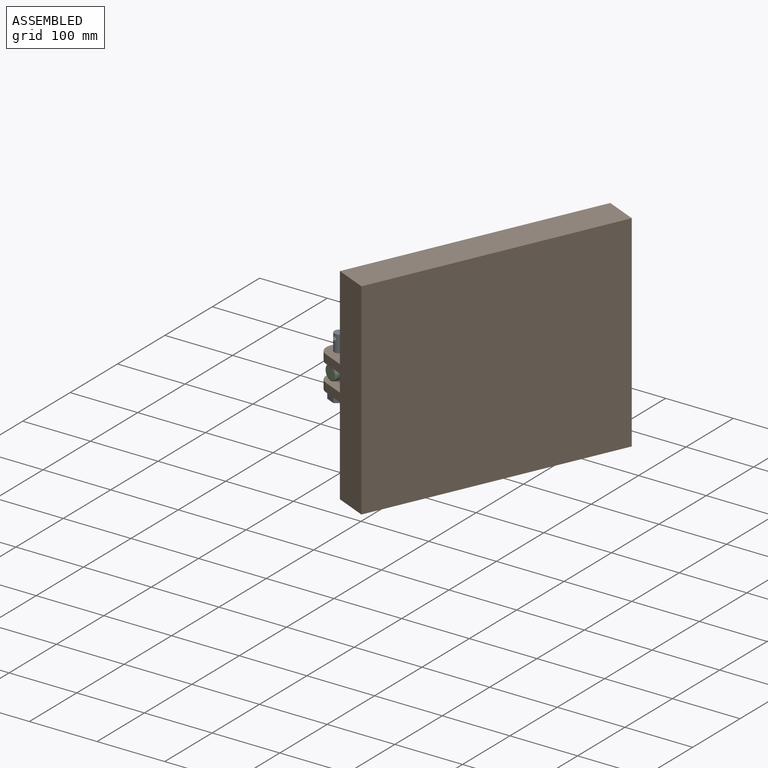
[diagram: assembled view]
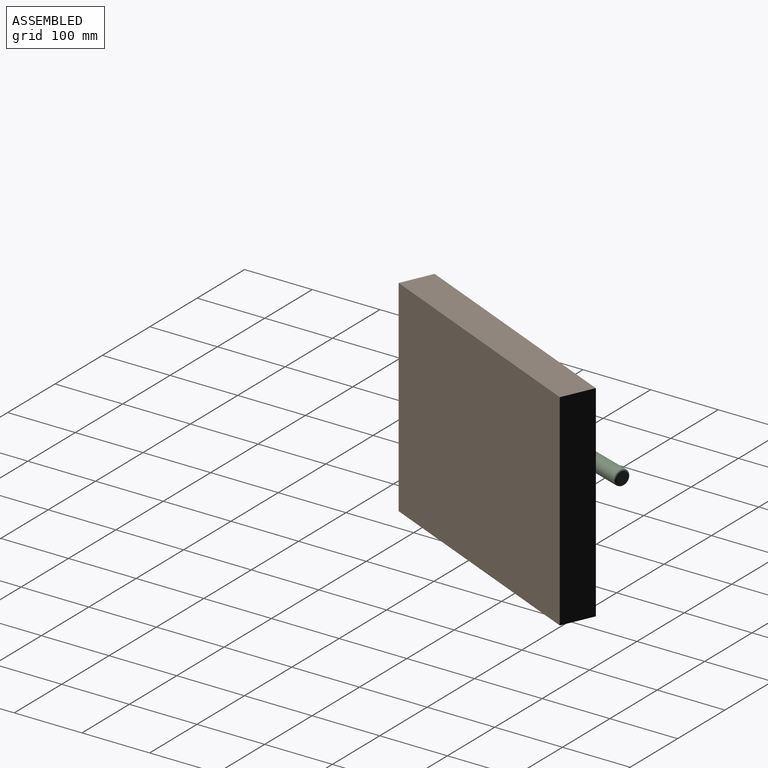
[diagram: assembled view, second angle]
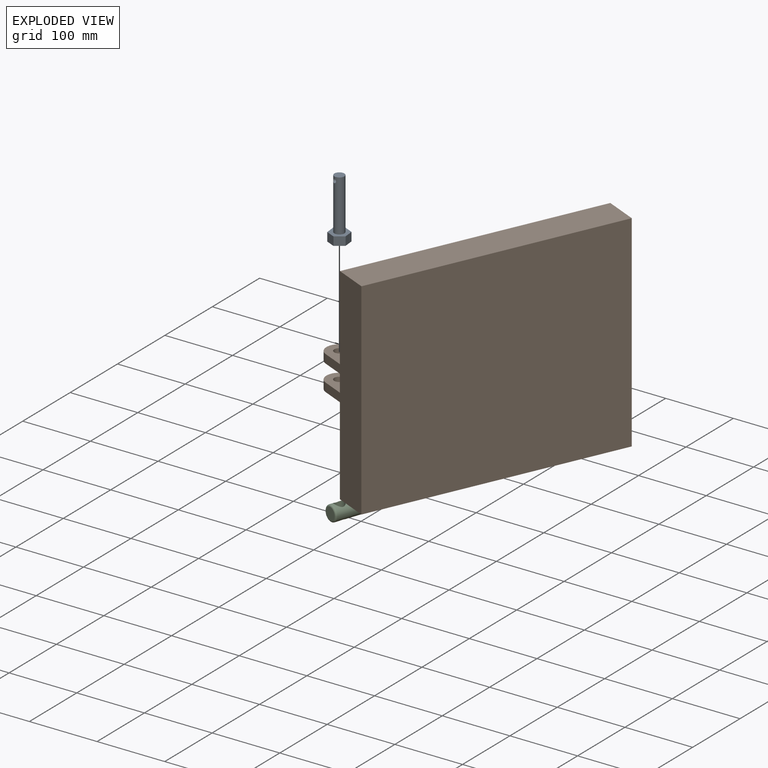
[diagram: exploded view]
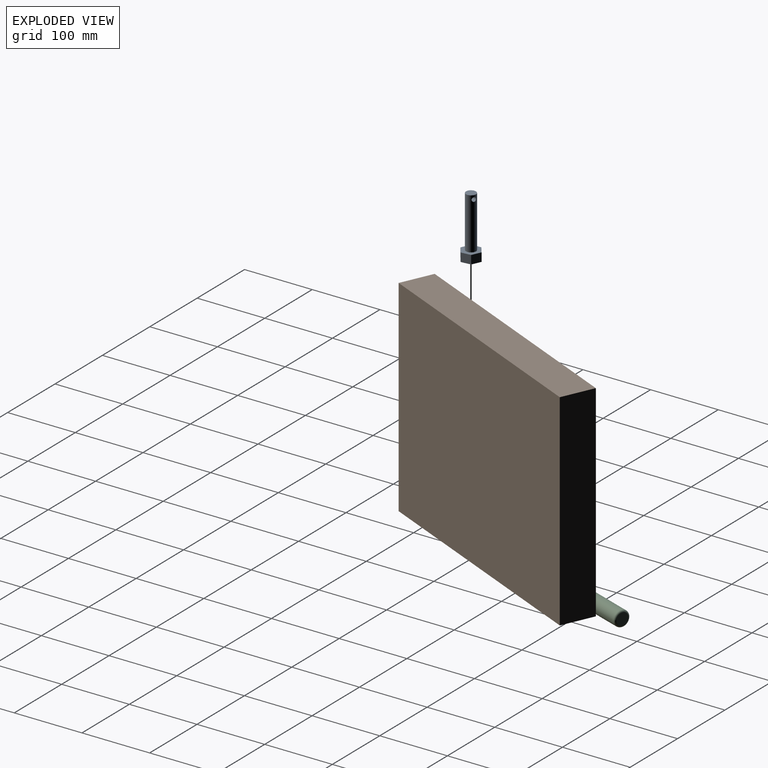
[diagram: exploded view, second angle]
ASSEMBLY  parts=3 mates=2
PART A: 11 faces, bbox 25.4x88.9x29.3 mm
  f0: cylinder r=7.37mm len=76.2mm, axis (0,1,0), area 3461.7mm2, adj f1,f9,f10
  f1: plane 14.73x14.73mm, normal (0,-1,0), area 170.5mm2, adj f0
  f2: plane 14.66x12.7mm, normal (1,0,0), area 186.2mm2, adj f3,f7,f8,f9
  f3: plane 12.7x12.7mm, normal (0.5,0,0.87), area 186.2mm2, adj f2,f4,f8,f9
  f4: plane 12.7x12.7mm, normal (-0.5,0,0.87), area 186.2mm2, adj f3,f5,f8,f9
  f5: plane 14.66x12.7mm, normal (-1,0,0), area 186.2mm2, adj f4,f6,f8,f9
  f6: plane 12.7x12.7mm, normal (-0.5,0,-0.87), area 186.2mm2, adj f5,f7,f8,f9
  f7: plane 12.7x12.7mm, normal (0.5,0,-0.87), area 186.2mm2, adj f2,f6,f8,f9
  f8: plane 29.33x25.4mm, normal (0,1,0), area 558.7mm2, adj f2,f3,f4,f5,f6,f7
  f9: plane 29.33x25.4mm, normal (0,-1,0), area 388.3mm2, adj f0,f2,f3,f4,f5,f6,f7
  f10: cylinder r=3.17mm len=14.73mm, axis (1,0,0), area 279.7mm2, adj f0
PART B: 20 faces, bbox 381x108x304.8 mm
  f0: plane 381x304.8mm, normal (0,1,0), area 108953.9mm2, adj f1,f2,f3,f4,f6,f8,f9,f10
  f1: plane 381x50.8mm, normal (0,0,-1), area 19354.8mm2, adj f0,f2,f4,f5
  f2: plane 304.8x50.8mm, normal (1,0,0), area 15483.8mm2, adj f0,f1,f3,f5
  f3: plane 381x50.8mm, normal (0,0,1), area 19354.8mm2, adj f0,f2,f4,f5
  f4: plane 304.8x50.8mm, normal (-1,0,0), area 15483.8mm2, adj f0,f1,f3,f5
  f5: plane 381x304.8mm, normal (0,-1,0), area 116128.8mm2, adj f1,f2,f3,f4
  f6: plane 38.1x12.7mm, normal (1,0,0), area 483.9mm2, adj f0,f7,f9,f10
  f7: cylinder r=19.05mm len=38.1mm, axis (0,0,1), area 760.1mm2, adj f6,f8,f9,f10
  f8: plane 38.1x12.7mm, normal (-1,0,0), area 483.9mm2, adj f0,f7,f9,f10
  f9: plane 57.15x38.1mm, normal (0,0,-1), area 1839.2mm2, adj f0,f6,f7,f8,f11
  f10: plane 57.15x38.1mm, normal (0,0,1), area 1839.2mm2, adj f0,f6,f7,f8,f11
  f11: cylinder r=7.62mm len=15.24mm, axis (0,0,1), area 608mm2, adj f9,f10
  f12: plane 38.1x12.7mm, normal (-1,0,0), area 483.9mm2, adj f0,f13,f15,f16
  f13: cylinder r=19.05mm len=38.1mm, axis (0,0,-1), area 760.1mm2, adj f12,f14,f15,f16
  f14: plane 38.1x12.7mm, normal (1,0,0), area 483.9mm2, adj f0,f13,f15,f16
  f15: plane 57.15x38.1mm, normal (0,0,1), area 1839.2mm2, adj f0,f12,f13,f14,f17
  f16: plane 57.15x38.1mm, normal (0,0,-1), area 1839.2mm2, adj f0,f12,f13,f14,f17
  f17: cylinder r=7.62mm len=15.24mm, axis (0,0,-1), area 608mm2, adj f15,f16
  f18: cone r=0mm half-angle=59deg, axis (0,1,0), area 7241.5mm2, adj f19
  f19: cylinder r=44.45mm len=88.9mm, axis (0,1,0), area 5320.4mm2, adj f0,f18
PART C: 6 faces, bbox 24.7x330.2x24.7 mm
  f0: cylinder r=11.43mm len=325.12mm, axis (0,1,0), area 22959.6mm2, adj f3,f4,f5
  f1: plane 17.78x17.78mm, normal (0,-1,0), area 248.3mm2, adj f4
  f2: plane 17.78x17.78mm, normal (0,1,0), area 248.3mm2, adj f5
  f3: cylinder r=7.62mm len=22.86mm, axis (0,0,1), area 960.2mm2, adj f0
  f4: torus R=8.89mm, axis (0,-1,0), area 263.4mm2, adj f0,f1
  f5: torus R=8.89mm, axis (0,-1,0), area 263.4mm2, adj f0,f2
PLACE A rot(axis=(-0.74,-0.48,0.48),107.2deg) t=(-414.34,74.76,340.81)mm
PLACE B rot(axis=(0,0,1),65.8deg) t=(-310.47,212.89,366.59)mm fixed
PLACE C rot(axis=(0,0,1),160.4deg) t=(-418.9,61.97,366.43)mm
MATE slider A.f0 <-> B.f7  axis (0,0,-1) through (-414.34,74.76,378.91)mm
MATE revolute B.f7 <-> C.f3  axis (0,0,-1) through (-414.34,74.76,353.89)mm
